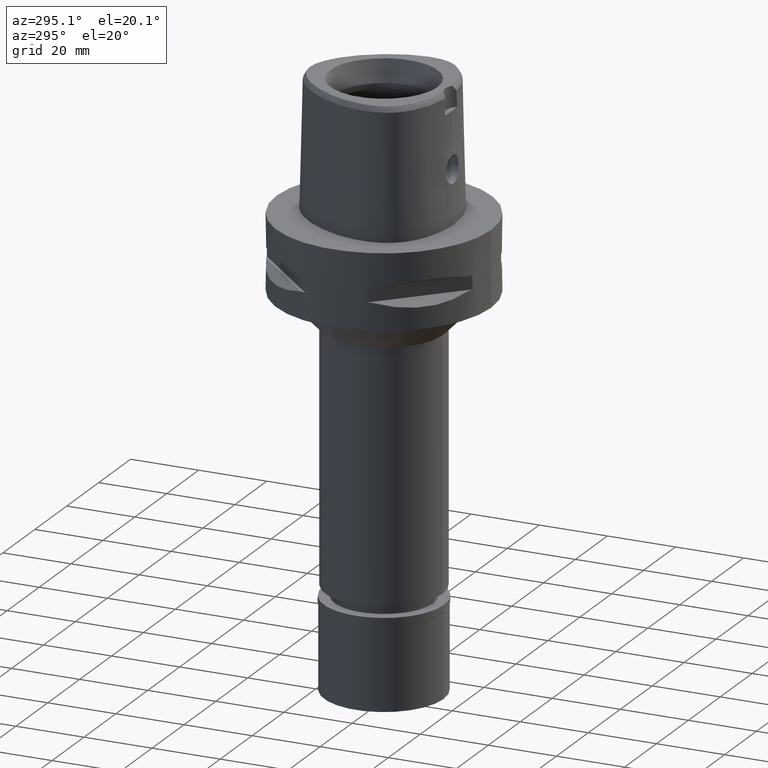
[diagram: clean part render]
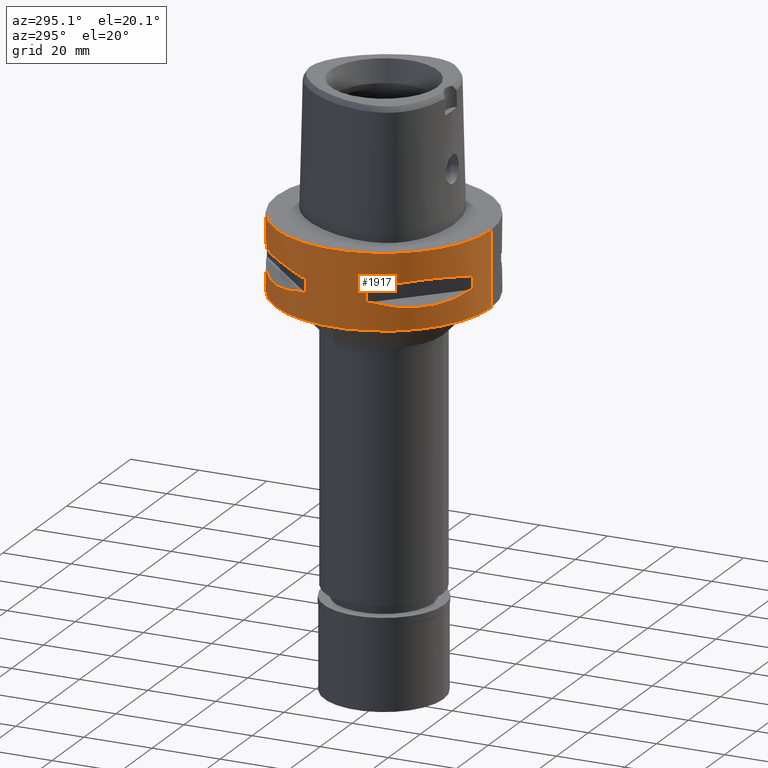
[diagram: same view with one face highlighted and labeled with its STEP entity id]
A machine part, auxiliary view. The second image highlights one B-rep face of the part: STEP entity #1917.
In plain terms, the highlighted cylindrical surface (partial cylindrical patch) has radius 31.5 mm, axis along (0, 0, -1).
Its self-contained STEP definition (entity closure, byte-faithful):
#8 = LINE ( 'NONE', #1680, #3294 ) ;
#32 = CARTESIAN_POINT ( 'NONE',  ( -27.88210502983995553, 14.84430321578704870, -8.906184731970032686 ) ) ;
#40 = EDGE_CURVE ( 'NONE', #1203, #4919, #4122, .T. ) ;
#44 = CARTESIAN_POINT ( 'NONE',  ( -16.96123479565102343, -26.54368690921830520, -15.41365572341627121 ) ) ;
#52 = DIRECTION ( 'NONE',  ( -0.3316748332540863653, 0.9433937698468619626, 0.0000000000000000000 ) ) ;
#78 = DIRECTION ( 'NONE',  ( 0.0000000000000000000, 0.0000000000000000000, -1.000000000000000000 ) ) ;
#97 = CARTESIAN_POINT ( 'NONE',  ( -26.52527364208752303, 16.98999780422271044, -15.41788098766625659 ) ) ;
#115 = CARTESIAN_POINT ( 'NONE',  ( -29.71690375017999841, -10.44775724750000023, -9.950000000002001244 ) ) ;
#122 = CARTESIAN_POINT ( 'NONE',  ( -17.05047092244640083, -26.48642424310511601, -15.42670883407999227 ) ) ;
#136 = CARTESIAN_POINT ( 'NONE',  ( -16.80193241490824008, 26.64486562695909555, -15.38992683736019096 ) ) ;
#170 = ORIENTED_EDGE ( 'NONE', *, *, #4217, .T. ) ;
#181 = CARTESIAN_POINT ( 'NONE',  ( -25.43927894891552910, 18.59229662065583355, -15.62866126334707850 ) ) ;
#220 = CARTESIAN_POINT ( 'NONE',  ( -8.981198972019999616, -30.19251670572000279, -14.05000000000000071 ) ) ;
#230 = AXIS2_PLACEMENT_3D ( 'NONE', #3943, #1726, #4708 ) ;
#265 = VERTEX_POINT ( 'NONE', #534 ) ;
#289 = CARTESIAN_POINT ( 'NONE',  ( 0.0000000000000000000, -31.50000000000000000, 1.243449787579999883E-14 ) ) ;
#332 = EDGE_CURVE ( 'NONE', #2607, #1487, #4179, .T. ) ;
#370 = AXIS2_PLACEMENT_3D ( 'NONE', #2187, #3021, #576 ) ;
#414 = B_SPLINE_CURVE_WITH_KNOTS ( 'NONE', 3,
 ( #115, #823, #2377, #1611, #1263, #3211, #1690, #3913, #3533, #3237 ),
 .UNSPECIFIED., .F., .F.,
 ( 4, 2, 2, 2, 4 ),
 ( 0.0000000000000000000, 0.2499999999999999445, 0.4999999999999998890, 0.7499999999999997780, 1.000000000000000000 ),
 .UNSPECIFIED. ) ;
#423 = CARTESIAN_POINT ( 'NONE',  ( -20.64154884328072370, 23.90617837147178193, -8.160627831312675440 ) ) ;
#431 = CARTESIAN_POINT ( 'NONE',  ( -27.64634172017731117, -15.11986997311805325, -15.11207862404262947 ) ) ;
#460 = AXIS2_PLACEMENT_3D ( 'NONE', #4962, #2603, #3408 ) ;
#470 = CARTESIAN_POINT ( 'NONE',  ( -27.86285265926213128, 14.89252659058332462, -15.10765629752265049 ) ) ;
#479 = VERTEX_POINT ( 'NONE', #220 ) ;
#481 = EDGE_CURVE ( 'NONE', #479, #1183, #3454, .T. ) ;
#485 = B_SPLINE_CURVE_WITH_KNOTS ( 'NONE', 3,
 ( #829, #4756, #2384, #431, #3539, #2812, #544, #1302, #2471, #3918, #3163, #2843, #4786, #4352, #914, #3990, #1696, #517, #122, #3245, #44, #2787, #2869, #1330 ),
 .UNSPECIFIED., .F., .F.,
 ( 4, 1, 1, 1, 1, 1, 2, 2, 2, 1, 1, 1, 1, 1, 2, 2, 4 ),
 ( 0.0000000000000000000, 0.1249999999999996947, 0.1874999999999995837, 0.2187499999999996392, 0.2343749999999997224, 0.2421874999999996392, 0.2460937499999994726, 0.2499999999999993339, 0.4999999999999910072, 0.6249999999999866773, 0.6874999999999845679, 0.7187499999999832356, 0.7343749999999825695, 0.7421874999999822364, 0.7460937499999822364, 0.7499999999999822364, 1.000000000000000000 ),
 .UNSPECIFIED. ) ;
#509 = DIRECTION ( 'NONE',  ( 0.0000000000000000000, -1.000000000000000000, 0.0000000000000000000 ) ) ;
#517 = CARTESIAN_POINT ( 'NONE',  ( -17.14106442935278807, -26.42800887047471647, -15.43984550238848108 ) ) ;
#534 = CARTESIAN_POINT ( 'NONE',  ( -10.44775724750000023, -29.71690375017999841, -9.950000000002001244 ) ) ;
#544 = CARTESIAN_POINT ( 'NONE',  ( -26.70521063584573085, -16.70616724746297521, -15.37546661818069893 ) ) ;
#568 = CARTESIAN_POINT ( 'NONE',  ( -10.44775724750000023, 29.71690375017999841, -14.05000000000000071 ) ) ;
#572 = CARTESIAN_POINT ( 'NONE',  ( -23.08532645888064394, 21.46242677078517502, -15.83938991065631363 ) ) ;
#576 = DIRECTION ( 'NONE',  ( 0.0000000000000000000, -1.000000000000000000, 0.0000000000000000000 ) ) ;
#587 = CARTESIAN_POINT ( 'NONE',  ( -30.19251670572000279, -8.981198972016999349, -14.05000000000000071 ) ) ;
#625 = FACE_BOUND ( 'NONE', #1470, .T. ) ;
#757 = ORIENTED_EDGE ( 'NONE', *, *, #40, .F. ) ;
#762 = ORIENTED_EDGE ( 'NONE', *, *, #3022, .F. ) ;
#765 = CARTESIAN_POINT ( 'NONE',  ( 0.0000000000000000000, 1.300574900694000041E-14, 1.243449787579999883E-14 ) ) ;
#774 = EDGE_CURVE ( 'NONE', #3243, #1883, #8, .T. ) ;
#789 = EDGE_CURVE ( 'NONE', #1487, #3764, #1756, .T. ) ;
#792 = CIRCLE ( 'NONE', #1452, 31.50000000000000000 ) ;
#807 = CIRCLE ( 'NONE', #230, 31.50000000000000711 ) ;
#823 = CARTESIAN_POINT ( 'NONE',  ( -28.92474506843119286, -12.70092055735351266, -9.353547358217943142 ) ) ;
#829 = CARTESIAN_POINT ( 'NONE',  ( -29.71690375017999841, -10.44775724750000023, -14.05000000000000071 ) ) ;
#865 = CARTESIAN_POINT ( 'NONE',  ( -26.54368690921832652, 16.96123479565093461, -15.41365572341623924 ) ) ;
#869 = AXIS2_PLACEMENT_3D ( 'NONE', #1062, #1835, #4113 ) ;
#878 = CARTESIAN_POINT ( 'NONE',  ( -16.89910283486704401, 26.58330558444640701, -15.40446471307534893 ) ) ;
#886 = CARTESIAN_POINT ( 'NONE',  ( -26.48642424310615340, 17.05047092244463869, -15.42670883407968496 ) ) ;
#905 = ORIENTED_EDGE ( 'NONE', *, *, #2217, .T. ) ;
#911 = CARTESIAN_POINT ( 'NONE',  ( -30.19251670572000279, -8.981198972016999349, -9.950000000000001066 ) ) ;
#914 = CARTESIAN_POINT ( 'NONE',  ( -18.59229662067467004, -25.43927894890445529, -15.62866126335025641 ) ) ;
#920 = DIRECTION ( 'NONE',  ( 0.0000000000000000000, 0.0000000000000000000, 1.000000000000000000 ) ) ;
#989 = CARTESIAN_POINT ( 'NONE',  ( -26.01217882834692929, 17.76952662672333716, -15.52665221626398839 ) ) ;
#1024 = CARTESIAN_POINT ( 'NONE',  ( -16.48208282229422039, 26.84474411198782207, -15.34094883778343110 ) ) ;
#1038 = CIRCLE ( 'NONE', #869, 31.50000000000001776 ) ;
#1062 = CARTESIAN_POINT ( 'NONE',  ( 0.0000000000000000000, 1.300574900694000041E-14, -14.05000000000000071 ) ) ;
#1068 = EDGE_CURVE ( 'NONE', #3182, #2427, #4402, .T. ) ;
#1101 = VERTEX_POINT ( 'NONE', #2468 ) ;
#1183 = VERTEX_POINT ( 'NONE', #3592 ) ;
#1203 = VERTEX_POINT ( 'NONE', #568 ) ;
#1263 = CARTESIAN_POINT ( 'NONE',  ( -23.90617837150509573, -20.64154884324738504, -8.160627831300901747 ) ) ;
#1270 = CARTESIAN_POINT ( 'NONE',  ( -26.29071741523750916, 17.35163608580039707, -15.46976201925746786 ) ) ;
#1294 = DIRECTION ( 'NONE',  ( 0.0000000000000000000, 0.0000000000000000000, -1.000000000000000000 ) ) ;
#1298 = DIRECTION ( 'NONE',  ( 0.0000000000000000000, 0.0000000000000000000, -1.000000000000000000 ) ) ;
#1302 = CARTESIAN_POINT ( 'NONE',  ( -26.64486562695883620, -16.80193241490900746, -15.38992683736042011 ) ) ;
#1303 = CARTESIAN_POINT ( 'NONE',  ( -18.86897208075159327, 25.32725744466621975, -15.69588095933951699 ) ) ;
#1322 = EDGE_CURVE ( 'NONE', #3618, #4919, #1038, .T. ) ;
#1330 = CARTESIAN_POINT ( 'NONE',  ( -10.44775724750000023, -29.71690375017999841, -14.05000000000000071 ) ) ;
#1388 = AXIS2_PLACEMENT_3D ( 'NONE', #4310, #3499, #52 ) ;
#1389 = LINE ( 'NONE', #2241, #4358 ) ;
#1414 = DIRECTION ( 'NONE',  ( 0.0000000000000000000, 0.0000000000000000000, -1.000000000000000000 ) ) ;
#1452 = AXIS2_PLACEMENT_3D ( 'NONE', #765, #1294, #509 ) ;
#1470 = EDGE_LOOP ( 'NONE', ( #4944, #4720, #2084, #757, #4028, #762, #4764, #2881 ) ) ;
#1475 = EDGE_CURVE ( 'NONE', #4159, #2607, #1765, .T. ) ;
#1487 = VERTEX_POINT ( 'NONE', #3885 ) ;
#1577 = DIRECTION ( 'NONE',  ( 0.0000000000000000000, 0.0000000000000000000, 1.000000000000000000 ) ) ;
#1611 = CARTESIAN_POINT ( 'NONE',  ( -25.37277178164059421, -18.81455742168903456, -8.309746333112720151 ) ) ;
#1680 = CARTESIAN_POINT ( 'NONE',  ( 0.0000000000000000000, 31.50000000000000000, 0.0000000000000000000 ) ) ;
#1690 = CARTESIAN_POINT ( 'NONE',  ( -18.81462633026353259, -25.37272068403002478, -8.309724968617139496 ) ) ;
#1696 = CARTESIAN_POINT ( 'NONE',  ( -17.35163608580627681, -26.29071741523403816, -15.46976201925846439 ) ) ;
#1726 = DIRECTION ( 'NONE',  ( 0.0000000000000000000, 0.0000000000000000000, -1.000000000000000000 ) ) ;
#1735 = EDGE_LOOP ( 'NONE', ( #3337, #2371, #4739, #2980, #170, #1868, #2652, #2903 ) ) ;
#1756 = CIRCLE ( 'NONE', #2576, 31.50000000000000711 ) ;
#1765 = CIRCLE ( 'NONE', #3706, 31.50000000000001776 ) ;
#1799 = FACE_OUTER_BOUND ( 'NONE', #2150, .T. ) ;
#1828 = LINE ( 'NONE', #2575, #4030 ) ;
#1835 = DIRECTION ( 'NONE',  ( 0.0000000000000000000, 0.0000000000000000000, -1.000000000000000000 ) ) ;
#1868 = ORIENTED_EDGE ( 'NONE', *, *, #1068, .F. ) ;
#1883 = VERTEX_POINT ( 'NONE', #2495 ) ;
#1884 = VERTEX_POINT ( 'NONE', #3654 ) ;
#1912 = VERTEX_POINT ( 'NONE', #2567 ) ;
#1914 = AXIS2_PLACEMENT_3D ( 'NONE', #3258, #1414, #3687 ) ;
#1917 = ADVANCED_FACE ( 'NONE', ( #1799, #625, #4481 ), #2922, .T. ) ;
#1978 = DIRECTION ( 'NONE',  ( 0.0000000000000000000, 0.0000000000000000000, 1.000000000000000000 ) ) ;
#1988 = EDGE_CURVE ( 'NONE', #1101, #1183, #485, .T. ) ;
#2035 = CARTESIAN_POINT ( 'NONE',  ( -29.71690375017999841, 10.44775724750000023, -14.05000000000000071 ) ) ;
#2084 = ORIENTED_EDGE ( 'NONE', *, *, #1322, .T. ) ;
#2090 = CARTESIAN_POINT ( 'NONE',  ( -14.84422749199032943, 27.88214534470565198, -8.906206096500943303 ) ) ;
#2135 = CARTESIAN_POINT ( 'NONE',  ( -13.25636937905250079, 28.62019653468292901, -14.74888225541883280 ) ) ;
#2137 = CARTESIAN_POINT ( 'NONE',  ( 0.0000000000000000000, 1.300574900694000041E-14, -9.950000000000001066 ) ) ;
#2150 = EDGE_LOOP ( 'NONE', ( #2440, #4826, #905, #4566 ) ) ;
#2151 = EDGE_CURVE ( 'NONE', #479, #1884, #5025, .T. ) ;
#2187 = CARTESIAN_POINT ( 'NONE',  ( 0.0000000000000000000, 1.300574900694000041E-14, 6.200000000000000178 ) ) ;
#2217 = EDGE_CURVE ( 'NONE', #2860, #3243, #792, .T. ) ;
#2220 = CARTESIAN_POINT ( 'NONE',  ( -30.19251670572000279, -8.981198972019999616, -9.950000000000001066 ) ) ;
#2241 = CARTESIAN_POINT ( 'NONE',  ( -30.19251670572000279, 8.981198972016999349, -14.05000000000000071 ) ) ;
#2255 = CARTESIAN_POINT ( 'NONE',  ( 0.0000000000000000000, -31.50000000000000000, 0.0000000000000000000 ) ) ;
#2292 = CARTESIAN_POINT ( 'NONE',  ( 0.0000000000000000000, 1.300574900694000041E-14, -22.00000000000000000 ) ) ;
#2318 = DIRECTION ( 'NONE',  ( -0.2851174276831918153, 0.9584925938322735872, 0.0000000000000000000 ) ) ;
#2361 = EDGE_CURVE ( 'NONE', #1912, #265, #414, .T. ) ;
#2371 = ORIENTED_EDGE ( 'NONE', *, *, #2151, .F. ) ;
#2377 = CARTESIAN_POINT ( 'NONE',  ( -27.88214534467230976, -14.84422749205291581, -8.906206096483270329 ) ) ;
#2384 = CARTESIAN_POINT ( 'NONE',  ( -28.62019653467917379, -13.25636937906317847, -14.74888225542168207 ) ) ;
#2415 = CARTESIAN_POINT ( 'NONE',  ( -8.981198972016999349, 30.19251670572000279, -14.05000000000000071 ) ) ;
#2425 = CARTESIAN_POINT ( 'NONE',  ( -18.81455742163205613, 25.37277178168287151, -8.309746333130389573 ) ) ;
#2427 = VERTEX_POINT ( 'NONE', #587 ) ;
#2440 = ORIENTED_EDGE ( 'NONE', *, *, #3526, .T. ) ;
#2468 = CARTESIAN_POINT ( 'NONE',  ( -29.71690375017999841, -10.44775724750000023, -14.05000000000000071 ) ) ;
#2471 = CARTESIAN_POINT ( 'NONE',  ( -26.60451452154899243, -16.86571563436900334, -15.39949295786335703 ) ) ;
#2495 = CARTESIAN_POINT ( 'NONE',  ( 0.0000000000000000000, 31.50000000000000000, -22.00000000000000000 ) ) ;
#2526 = DIRECTION ( 'NONE',  ( -0.3316748332540863653, -0.9433937698468619626, 0.0000000000000000000 ) ) ;
#2567 = CARTESIAN_POINT ( 'NONE',  ( -29.71690375017999841, -10.44775724750000023, -9.950000000002001244 ) ) ;
#2575 = CARTESIAN_POINT ( 'NONE',  ( -8.981198972016999349, 30.19251670572000279, -9.950000000000001066 ) ) ;
#2576 = AXIS2_PLACEMENT_3D ( 'NONE', #3227, #1577, #4690 ) ;
#2603 = DIRECTION ( 'NONE',  ( 0.0000000000000000000, 0.0000000000000000000, 1.000000000000000000 ) ) ;
#2607 = VERTEX_POINT ( 'NONE', #3929 ) ;
#2652 = ORIENTED_EDGE ( 'NONE', *, *, #3137, .T. ) ;
#2751 = AXIS2_PLACEMENT_3D ( 'NONE', #2292, #1978, #3521 ) ;
#2787 = CARTESIAN_POINT ( 'NONE',  ( -14.89252659057813055, -27.86285265926396093, -15.10765629752128092 ) ) ;
#2800 = EDGE_CURVE ( 'NONE', #3618, #3764, #1389, .T. ) ;
#2812 = CARTESIAN_POINT ( 'NONE',  ( -26.84474411198696231, -16.48208282229673927, -15.34094883778413454 ) ) ;
#2813 = CARTESIAN_POINT ( 'NONE',  ( -26.42800887047648928, 17.14106442934974339, -15.43984550238795883 ) ) ;
#2843 = CARTESIAN_POINT ( 'NONE',  ( -23.89673728052704504, -20.65093790438166010, -15.83935804901764932 ) ) ;
#2854 = CARTESIAN_POINT ( 'NONE',  ( -28.91382665368477944, 12.73197616789208197, -14.65467361754293485 ) ) ;
#2858 = CARTESIAN_POINT ( 'NONE',  ( -10.44775724750000023, 29.71690375017999841, -9.950000000002001244 ) ) ;
#2860 = VERTEX_POINT ( 'NONE', #289 ) ;
#2869 = CARTESIAN_POINT ( 'NONE',  ( -12.73197616788688613, -28.91382665368660909, -14.65467361754157416 ) ) ;
#2881 = ORIENTED_EDGE ( 'NONE', *, *, #332, .T. ) ;
#2903 = ORIENTED_EDGE ( 'NONE', *, *, #2361, .T. ) ;
#2922 = CYLINDRICAL_SURFACE ( 'NONE', #370, 31.50000000000000000 ) ;
#2932 = DIRECTION ( 'NONE',  ( 0.0000000000000000000, 0.0000000000000000000, 1.000000000000000000 ) ) ;
#2980 = ORIENTED_EDGE ( 'NONE', *, *, #1988, .F. ) ;
#2997 = CARTESIAN_POINT ( 'NONE',  ( -30.19251670572000279, 8.981198972016999349, -9.950000000000001066 ) ) ;
#3021 = DIRECTION ( 'NONE',  ( 0.0000000000000000000, 0.0000000000000000000, -1.000000000000000000 ) ) ;
#3022 = EDGE_CURVE ( 'NONE', #4159, #3648, #1828, .T. ) ;
#3112 = DIRECTION ( 'NONE',  ( 0.0000000000000000000, 0.0000000000000000000, 1.000000000000000000 ) ) ;
#3137 = EDGE_CURVE ( 'NONE', #3182, #1912, #4766, .T. ) ;
#3147 = CARTESIAN_POINT ( 'NONE',  ( -29.71690375017999841, 10.44775724750000023, -14.05000000000000071 ) ) ;
#3151 = CARTESIAN_POINT ( 'NONE',  ( -29.71690375017999841, 10.44775724750000023, -9.950000000002001244 ) ) ;
#3163 = CARTESIAN_POINT ( 'NONE',  ( -25.32725744467784779, -18.86897208072815246, -15.69588095933470129 ) ) ;
#3182 = VERTEX_POINT ( 'NONE', #2220 ) ;
#3211 = CARTESIAN_POINT ( 'NONE',  ( -20.64154884324738148, -23.90617837150509928, -8.160613588479783687 ) ) ;
#3227 = CARTESIAN_POINT ( 'NONE',  ( 0.0000000000000000000, 1.300574900694000041E-14, -9.950000000000001066 ) ) ;
#3234 = CARTESIAN_POINT ( 'NONE',  ( -28.92472615205409170, 12.70097436183466932, -9.353533115209113902 ) ) ;
#3237 = CARTESIAN_POINT ( 'NONE',  ( -10.44775724750000023, -29.71690375017999841, -9.950000000002001244 ) ) ;
#3243 = VERTEX_POINT ( 'NONE', #4940 ) ;
#3245 = CARTESIAN_POINT ( 'NONE',  ( -16.98999780422360573, -26.52527364208699723, -15.41788098766641646 ) ) ;
#3251 = CARTESIAN_POINT ( 'NONE',  ( -15.11986997311003300, 27.64634172018012848, -15.11207862404048008 ) ) ;
#3258 = CARTESIAN_POINT ( 'NONE',  ( 0.0000000000000000000, 1.300574900694000041E-14, -14.05000000000000071 ) ) ;
#3273 = CARTESIAN_POINT ( 'NONE',  ( -16.03138450079080712, 27.11872488589147068, -15.26880420108086156 ) ) ;
#3294 = VECTOR ( 'NONE', #78, 1000.000000000000000 ) ;
#3337 = ORIENTED_EDGE ( 'NONE', *, *, #4982, .T. ) ;
#3390 = EDGE_CURVE ( 'NONE', #1203, #3648, #3556, .T. ) ;
#3393 = VECTOR ( 'NONE', #3112, 1000.000000000000000 ) ;
#3408 = DIRECTION ( 'NONE',  ( -0.9584925938322735872, -0.2851174276831918153, 0.0000000000000000000 ) ) ;
#3437 = CARTESIAN_POINT ( 'NONE',  ( 0.0000000000000000000, 1.300574900694000041E-14, -9.950000000000001066 ) ) ;
#3454 = CIRCLE ( 'NONE', #1914, 31.50000000000001776 ) ;
#3499 = DIRECTION ( 'NONE',  ( 0.0000000000000000000, 0.0000000000000000000, -1.000000000000000000 ) ) ;
#3521 = DIRECTION ( 'NONE',  ( 0.0000000000000000000, 1.000000000000000000, 0.0000000000000000000 ) ) ;
#3526 = EDGE_CURVE ( 'NONE', #1883, #4912, #4850, .T. ) ;
#3528 = CARTESIAN_POINT ( 'NONE',  ( -25.37272068398780434, 18.81462633032050746, -8.309724968599480732 ) ) ;
#3533 = CARTESIAN_POINT ( 'NONE',  ( -12.70097436179016093, -28.92472615206971653, -9.353533115220882266 ) ) ;
#3539 = CARTESIAN_POINT ( 'NONE',  ( -27.11872488588982577, -16.03138450079550026, -15.26880420108212633 ) ) ;
#3552 = CARTESIAN_POINT ( 'NONE',  ( 0.0000000000000000000, -31.50000000000000000, -22.00000000000000000 ) ) ;
#3556 = CIRCLE ( 'NONE', #1388, 31.50000000000000711 ) ;
#3592 = CARTESIAN_POINT ( 'NONE',  ( -10.44775724750000023, -29.71690375017999841, -14.05000000000000071 ) ) ;
#3618 = VERTEX_POINT ( 'NONE', #4019 ) ;
#3648 = VERTEX_POINT ( 'NONE', #2415 ) ;
#3654 = CARTESIAN_POINT ( 'NONE',  ( -8.981198972016999349, -30.19251670572000279, -9.950000000000001066 ) ) ;
#3655 = CARTESIAN_POINT ( 'NONE',  ( -10.44775724750000023, 29.71690375017999841, -14.05000000000000071 ) ) ;
#3673 = CARTESIAN_POINT ( 'NONE',  ( -24.23018836745160698, 20.18579225686725565, -15.78559396979343354 ) ) ;
#3687 = DIRECTION ( 'NONE',  ( -0.2851174276831918153, -0.9584925938322735872, 0.0000000000000000000 ) ) ;
#3706 = AXIS2_PLACEMENT_3D ( 'NONE', #3437, #4597, #2318 ) ;
#3736 = CARTESIAN_POINT ( 'NONE',  ( -16.70616724746166426, 26.70521063584618915, -15.37546661818032945 ) ) ;
#3764 = VERTEX_POINT ( 'NONE', #2997 ) ;
#3793 = LINE ( 'NONE', #2255, #3964 ) ;
#3885 = CARTESIAN_POINT ( 'NONE',  ( -29.71690375017999841, 10.44775724750000023, -9.950000000002001244 ) ) ;
#3888 = AXIS2_PLACEMENT_3D ( 'NONE', #2137, #920, #2526 ) ;
#3913 = CARTESIAN_POINT ( 'NONE',  ( -14.84430321572441613, -27.88210502987326578, -8.906184731987689673 ) ) ;
#3918 = CARTESIAN_POINT ( 'NONE',  ( -26.58330558444622227, -16.89910283486742415, -15.40446471307544662 ) ) ;
#3929 = CARTESIAN_POINT ( 'NONE',  ( -10.44775724750000023, 29.71690375017999841, -9.950000000002001244 ) ) ;
#3943 = CARTESIAN_POINT ( 'NONE',  ( 0.0000000000000000000, 1.300574900694000041E-14, -14.05000000000000071 ) ) ;
#3964 = VECTOR ( 'NONE', #4628, 1000.000000000000000 ) ;
#3990 = CARTESIAN_POINT ( 'NONE',  ( -17.76952662673432570, -26.01217882834047401, -15.52665221626585002 ) ) ;
#4019 = CARTESIAN_POINT ( 'NONE',  ( -30.19251670572000279, 8.981198972019999616, -14.05000000000000071 ) ) ;
#4028 = ORIENTED_EDGE ( 'NONE', *, *, #3390, .T. ) ;
#4030 = VECTOR ( 'NONE', #4078, 1000.000000000000000 ) ;
#4040 = CARTESIAN_POINT ( 'NONE',  ( -20.65093790436479892, 23.89673728055571900, -15.83935804902246147 ) ) ;
#4046 = CARTESIAN_POINT ( 'NONE',  ( -11.58970337495298608, 29.31542262584333969, -14.35229357167303021 ) ) ;
#4078 = DIRECTION ( 'NONE',  ( 0.0000000000000000000, 0.0000000000000000000, -1.000000000000000000 ) ) ;
#4113 = DIRECTION ( 'NONE',  ( -0.9584925938322735872, 0.2851174276831918153, 0.0000000000000000000 ) ) ;
#4122 = B_SPLINE_CURVE_WITH_KNOTS ( 'NONE', 3,
 ( #3655, #4046, #2135, #3251, #3273, #1024, #3736, #136, #4550, #878, #1303, #4040, #572, #3673, #181, #989, #1270, #2813, #886, #97, #865, #470, #2854, #2035 ),
 .UNSPECIFIED., .F., .F.,
 ( 4, 1, 1, 1, 1, 1, 2, 2, 2, 1, 1, 1, 1, 1, 2, 2, 4 ),
 ( 0.0000000000000000000, 0.1249999999999908684, 0.1874999999999862887, 0.2187499999999841516, 0.2343749999999829858, 0.2421874999999825973, 0.2460937499999824030, 0.2499999999999822364, 0.4999999999999892308, 0.6249999999999928946, 0.6874999999999945599, 0.7187499999999956701, 0.7343749999999963363, 0.7421874999999965583, 0.7460937499999964473, 0.7499999999999963363, 1.000000000000000000 ),
 .UNSPECIFIED. ) ;
#4131 = CIRCLE ( 'NONE', #3888, 31.50000000000000711 ) ;
#4159 = VERTEX_POINT ( 'NONE', #4729 ) ;
#4179 = B_SPLINE_CURVE_WITH_KNOTS ( 'NONE', 3,
 ( #2858, #4295, #2090, #2425, #423, #4394, #3528, #32, #3234, #3151 ),
 .UNSPECIFIED., .F., .F.,
 ( 4, 2, 2, 2, 4 ),
 ( 0.0000000000000000000, 0.2500000000000000000, 0.5000000000000000000, 0.7500000000000000000, 1.000000000000000000 ),
 .UNSPECIFIED. ) ;
#4217 = EDGE_CURVE ( 'NONE', #1101, #2427, #807, .T. ) ;
#4295 = CARTESIAN_POINT ( 'NONE',  ( -12.70092055730904868, 28.92474506844683901, -9.353547358229722164 ) ) ;
#4310 = CARTESIAN_POINT ( 'NONE',  ( 0.0000000000000000000, 1.300574900694000041E-14, -14.05000000000000071 ) ) ;
#4352 = CARTESIAN_POINT ( 'NONE',  ( -20.18579225689235912, -24.23018836743684545, -15.78559396979766305 ) ) ;
#4358 = VECTOR ( 'NONE', #2932, 1000.000000000000000 ) ;
#4394 = CARTESIAN_POINT ( 'NONE',  ( -23.90617837147178193, 20.64154884328073081, -8.160613588468008217 ) ) ;
#4402 = LINE ( 'NONE', #911, #4910 ) ;
#4481 = FACE_BOUND ( 'NONE', #1735, .T. ) ;
#4493 = EDGE_CURVE ( 'NONE', #2860, #4912, #3793, .T. ) ;
#4550 = CARTESIAN_POINT ( 'NONE',  ( -16.86571563436860188, 26.60451452154913454, -15.39949295786322558 ) ) ;
#4566 = ORIENTED_EDGE ( 'NONE', *, *, #774, .T. ) ;
#4597 = DIRECTION ( 'NONE',  ( 0.0000000000000000000, 0.0000000000000000000, 1.000000000000000000 ) ) ;
#4627 = CARTESIAN_POINT ( 'NONE',  ( -8.981198972016999349, -30.19251670572000279, -14.05000000000000071 ) ) ;
#4628 = DIRECTION ( 'NONE',  ( 0.0000000000000000000, 0.0000000000000000000, -1.000000000000000000 ) ) ;
#4690 = DIRECTION ( 'NONE',  ( -0.9433937698468619626, 0.3316748332540863653, 0.0000000000000000000 ) ) ;
#4708 = DIRECTION ( 'NONE',  ( -0.9433937698468619626, -0.3316748332540863653, 0.0000000000000000000 ) ) ;
#4720 = ORIENTED_EDGE ( 'NONE', *, *, #2800, .F. ) ;
#4729 = CARTESIAN_POINT ( 'NONE',  ( -8.981198972019999616, 30.19251670572000279, -9.950000000000001066 ) ) ;
#4739 = ORIENTED_EDGE ( 'NONE', *, *, #481, .T. ) ;
#4756 = CARTESIAN_POINT ( 'NONE',  ( -29.31542262584122227, -11.58970337495909853, -14.35229357167468578 ) ) ;
#4764 = ORIENTED_EDGE ( 'NONE', *, *, #1475, .T. ) ;
#4766 = CIRCLE ( 'NONE', #460, 31.50000000000001776 ) ;
#4786 = CARTESIAN_POINT ( 'NONE',  ( -21.46242677079953509, -23.08532645887220625, -15.83938991065873481 ) ) ;
#4826 = ORIENTED_EDGE ( 'NONE', *, *, #4493, .F. ) ;
#4850 = CIRCLE ( 'NONE', #2751, 31.50000000000000000 ) ;
#4910 = VECTOR ( 'NONE', #1298, 1000.000000000000000 ) ;
#4912 = VERTEX_POINT ( 'NONE', #3552 ) ;
#4919 = VERTEX_POINT ( 'NONE', #3147 ) ;
#4940 = CARTESIAN_POINT ( 'NONE',  ( 0.0000000000000000000, 31.50000000000000000, 1.243449787579999883E-14 ) ) ;
#4944 = ORIENTED_EDGE ( 'NONE', *, *, #789, .T. ) ;
#4962 = CARTESIAN_POINT ( 'NONE',  ( 0.0000000000000000000, 1.300574900694000041E-14, -9.950000000000001066 ) ) ;
#4982 = EDGE_CURVE ( 'NONE', #265, #1884, #4131, .T. ) ;
#5025 = LINE ( 'NONE', #4627, #3393 ) ;